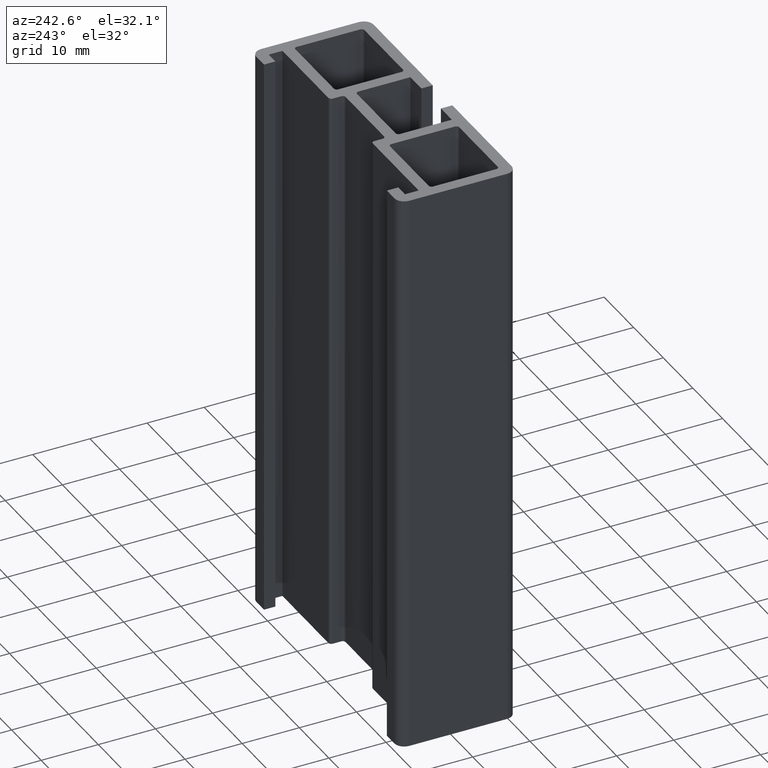
[diagram: clean part render]
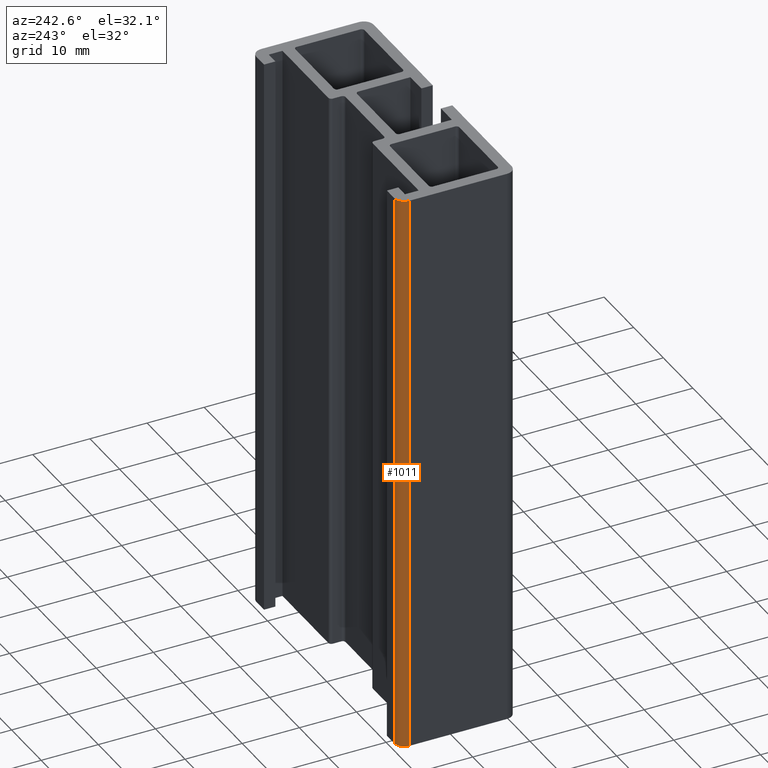
[diagram: same view with one face highlighted and labeled with its STEP entity id]
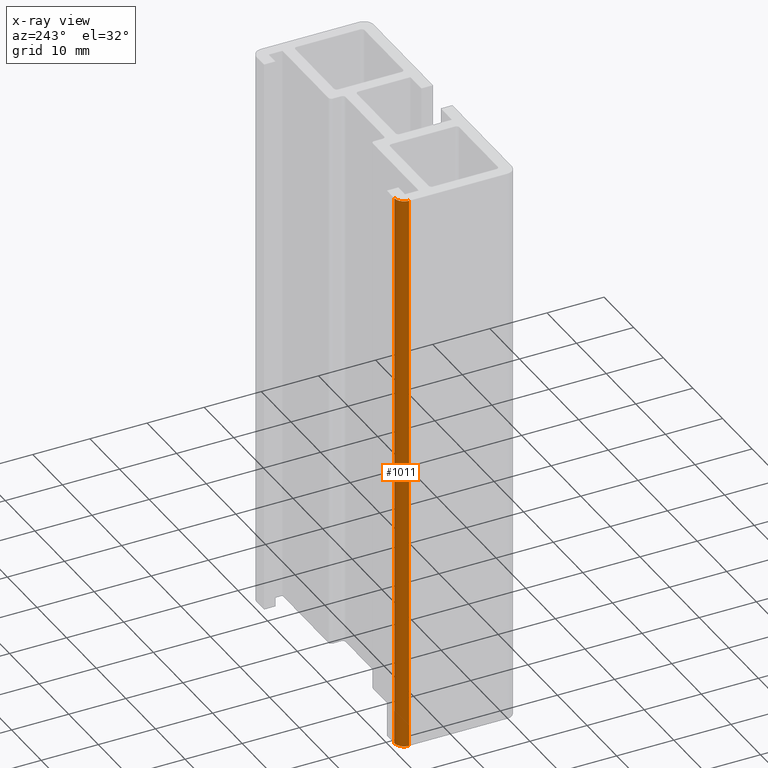
[diagram: x-ray of the same camera — body ghosted, the highlighted face saturated]
A machine part, auxiliary view. The second image highlights one B-rep face of the part: STEP entity #1011.
The next image is the same camera in x-ray: the body ghosted, the highlighted face saturated — about 0% of this face is hidden behind the body in this view.
In plain terms, the highlighted cylindrical surface (edge-blend (fillet) strip) has radius 1.7 mm, axis along (0, 0, 1).
Its self-contained STEP definition (entity closure, byte-faithful):
#71=FACE_OUTER_BOUND('',#123,.T.);
#123=EDGE_LOOP('',(#747,#748,#749,#750));
#197=LINE('',#1538,#311);
#198=LINE('',#1544,#312);
#311=VECTOR('',#1245,100.);
#312=VECTOR('',#1252,100.);
#407=CIRCLE('',#1084,1.7);
#408=CIRCLE('',#1085,1.7);
#461=VERTEX_POINT('',#1534);
#462=VERTEX_POINT('',#1536);
#463=VERTEX_POINT('',#1540);
#464=VERTEX_POINT('',#1542);
#579=EDGE_CURVE('',#461,#462,#197,.T.);
#580=EDGE_CURVE('',#463,#461,#407,.T.);
#581=EDGE_CURVE('',#464,#462,#408,.T.);
#582=EDGE_CURVE('',#463,#464,#198,.T.);
#747=ORIENTED_EDGE('',*,*,#580,.T.);
#748=ORIENTED_EDGE('',*,*,#579,.T.);
#749=ORIENTED_EDGE('',*,*,#581,.F.);
#750=ORIENTED_EDGE('',*,*,#582,.F.);
#984=CYLINDRICAL_SURFACE('',#1083,1.7);
#1011=ADVANCED_FACE('',(#71),#984,.T.);
#1083=AXIS2_PLACEMENT_3D('',#1539,#1246,#1247);
#1084=AXIS2_PLACEMENT_3D('',#1541,#1248,#1249);
#1085=AXIS2_PLACEMENT_3D('',#1543,#1250,#1251);
#1245=DIRECTION('',(0.,0.,1.));
#1246=DIRECTION('center_axis',(0.,0.,1.));
#1247=DIRECTION('ref_axis',(0.,1.,0.));
#1248=DIRECTION('center_axis',(0.,0.,1.));
#1249=DIRECTION('ref_axis',(0.,1.,0.));
#1250=DIRECTION('center_axis',(0.,0.,1.));
#1251=DIRECTION('ref_axis',(0.,1.,0.));
#1252=DIRECTION('',(0.,0.,1.));
#1534=CARTESIAN_POINT('',(-25.,8.55,0.));
#1536=CARTESIAN_POINT('',(-25.,8.55,100.));
#1538=CARTESIAN_POINT('',(-25.,8.55,0.));
#1539=CARTESIAN_POINT('Origin',(-23.3,8.55,0.));
#1540=CARTESIAN_POINT('',(-23.3,10.25,0.));
#1541=CARTESIAN_POINT('Origin',(-23.3,8.55,0.));
#1542=CARTESIAN_POINT('',(-23.3,10.25,100.));
#1543=CARTESIAN_POINT('Origin',(-23.3,8.55,100.));
#1544=CARTESIAN_POINT('',(-23.3,10.25,0.));